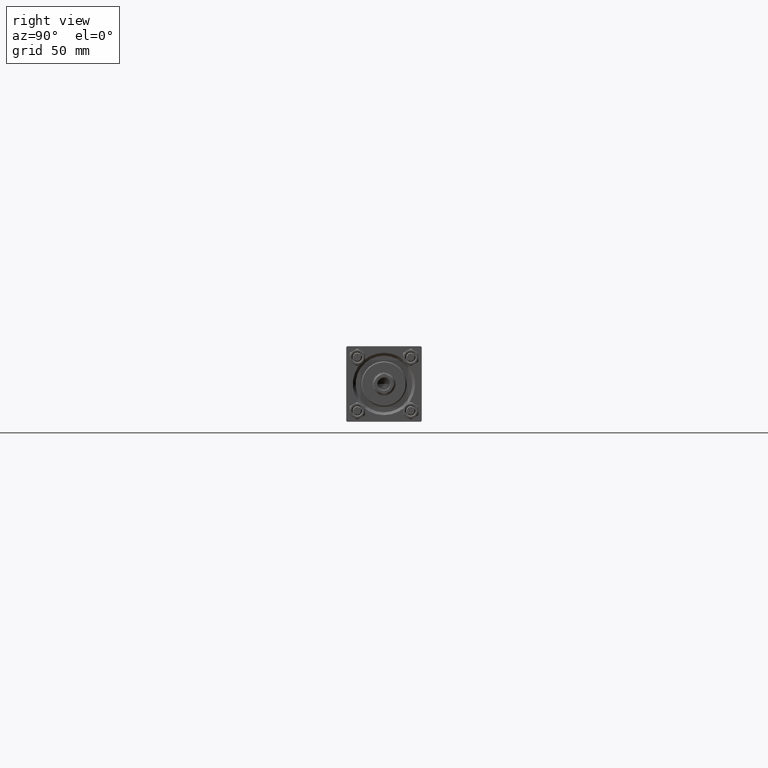
[diagram: clean part render]
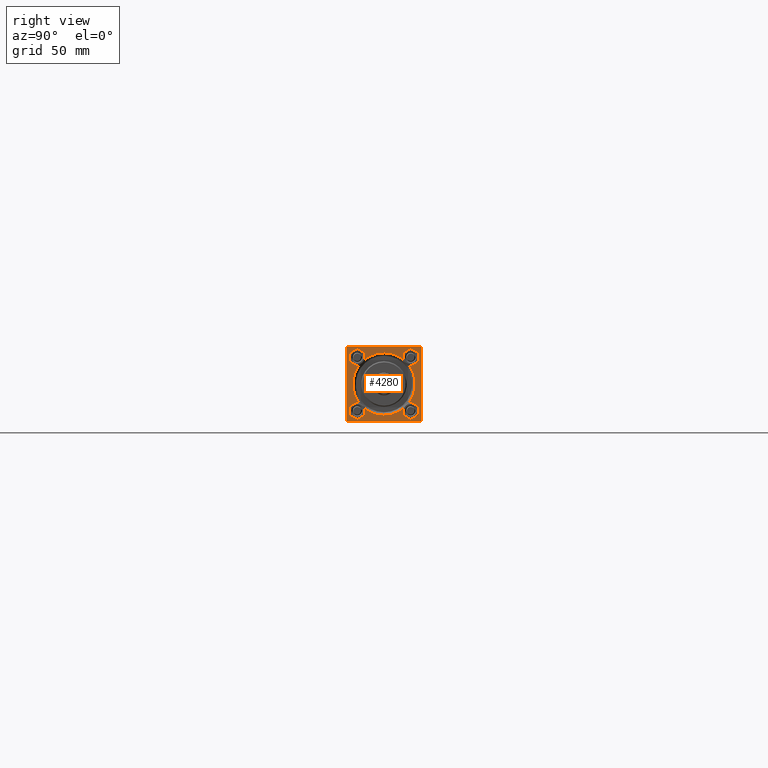
[diagram: same view with one face highlighted and labeled with its STEP entity id]
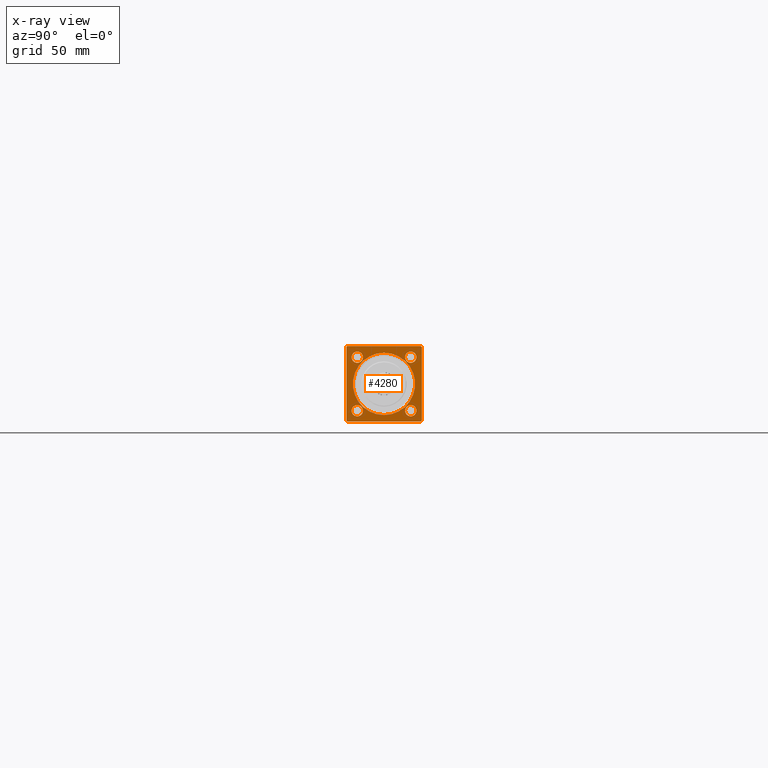
[diagram: x-ray of the same camera — body ghosted, the highlighted face saturated]
A machine part, right view. The second image highlights one B-rep face of the part: STEP entity #4280.
The next image is the same camera in x-ray: the body ghosted, the highlighted face saturated — about 0% of this face is hidden behind the body in this view.
In plain terms, the highlighted planar face has unit normal (-1, 0, 0).
Its self-contained STEP definition (entity closure, byte-faithful):
#285 = DIRECTION ( 'NONE',  ( -1.000000000000000000, -0.000000000000000000, -0.000000000000000000 ) ) ;
#430 = DIRECTION ( 'NONE',  ( 0.000000000000000000, 8.673617379884036705E-17, -1.000000000000000000 ) ) ;
#545 = VERTEX_POINT ( 'NONE', #15264 ) ;
#1279 = CIRCLE ( 'NONE', #23796, 16.50000000000001421 ) ;
#1395 = VERTEX_POINT ( 'NONE', #24186 ) ;
#1407 = ORIENTED_EDGE ( 'NONE', *, *, #14185, .T. ) ;
#1546 = CARTESIAN_POINT ( 'NONE',  ( 349.0000000000000568, 14.15000000000000036, 14.15000000000000036 ) ) ;
#1561 = AXIS2_PLACEMENT_3D ( 'NONE', #36440, #28636, #2215 ) ;
#2215 = DIRECTION ( 'NONE',  ( -0.000000000000000000, 0.000000000000000000, 1.000000000000000000 ) ) ;
#2224 = VERTEX_POINT ( 'NONE', #26988 ) ;
#2597 = DIRECTION ( 'NONE',  ( 0.000000000000000000, 0.000000000000000000, 1.000000000000000000 ) ) ;
#3080 = VERTEX_POINT ( 'NONE', #3415 ) ;
#3397 = CIRCLE ( 'NONE', #41960, 2.999999999999948930 ) ;
#3415 = CARTESIAN_POINT ( 'NONE',  ( 349.0000000000000568, 14.15000000000000036, 17.14999999999994884 ) ) ;
#3543 = VERTEX_POINT ( 'NONE', #31005 ) ;
#3788 = CARTESIAN_POINT ( 'NONE',  ( 349.0000000000000568, 19.99999999999999645, -19.50000000000000000 ) ) ;
#4043 = VERTEX_POINT ( 'NONE', #11554 ) ;
#4157 = LINE ( 'NONE', #11948, #42179 ) ;
#4280 = ADVANCED_FACE ( 'NONE', ( #5490, #6237, #5735, #25098, #21079, #20830 ), #36194, .F. ) ;
#4591 = EDGE_CURVE ( 'NONE', #31652, #39536, #48400, .T. ) ;
#4906 = AXIS2_PLACEMENT_3D ( 'NONE', #40559, #28242, #25199 ) ;
#4974 = EDGE_LOOP ( 'NONE', ( #44259, #21746, #35215, #9643, #23665, #16614, #34670, #5513 ) ) ;
#5184 = EDGE_CURVE ( 'NONE', #7539, #45128, #17318, .T. ) ;
#5490 = FACE_BOUND ( 'NONE', #10378, .T. ) ;
#5513 = ORIENTED_EDGE ( 'NONE', *, *, #46246, .T. ) ;
#5677 = CARTESIAN_POINT ( 'NONE',  ( 349.0000000000000568, 2.020667218593134678E-15, 16.50000000000001421 ) ) ;
#5735 = FACE_BOUND ( 'NONE', #13906, .T. ) ;
#6132 = VERTEX_POINT ( 'NONE', #29644 ) ;
#6237 = FACE_BOUND ( 'NONE', #22122, .T. ) ;
#6854 = AXIS2_PLACEMENT_3D ( 'NONE', #28531, #25240, #2597 ) ;
#7150 = DIRECTION ( 'NONE',  ( 0.000000000000000000, -1.000000000000000000, 0.000000000000000000 ) ) ;
#7426 = DIRECTION ( 'NONE',  ( 0.000000000000000000, 0.000000000000000000, 1.000000000000000000 ) ) ;
#7539 = VERTEX_POINT ( 'NONE', #43655 ) ;
#7676 = DIRECTION ( 'NONE',  ( -1.000000000000000000, -0.000000000000000000, -0.000000000000000000 ) ) ;
#7814 = DIRECTION ( 'NONE',  ( 0.000000000000000000, 0.000000000000000000, 1.000000000000000000 ) ) ;
#8487 = CARTESIAN_POINT ( 'NONE',  ( 349.0000000000000568, -19.50000000000006040, 19.99999999999999645 ) ) ;
#8518 = CIRCLE ( 'NONE', #18126, 2.999999999999948930 ) ;
#8546 = EDGE_CURVE ( 'NONE', #2224, #19412, #12944, .T. ) ;
#8712 = DIRECTION ( 'NONE',  ( 0.000000000000000000, 0.000000000000000000, 1.000000000000000000 ) ) ;
#8835 = AXIS2_PLACEMENT_3D ( 'NONE', #36564, #24978, #40329 ) ;
#9323 = ORIENTED_EDGE ( 'NONE', *, *, #21122, .T. ) ;
#9643 = ORIENTED_EDGE ( 'NONE', *, *, #17207, .T. ) ;
#10378 = EDGE_LOOP ( 'NONE', ( #12256, #41924 ) ) ;
#10435 = VERTEX_POINT ( 'NONE', #8487 ) ;
#10440 = CIRCLE ( 'NONE', #8835, 2.999999999999945377 ) ;
#10633 = CARTESIAN_POINT ( 'NONE',  ( 349.0000000000000568, -19.49999999999999645, -20.00000000000000000 ) ) ;
#10855 = DIRECTION ( 'NONE',  ( -1.000000000000000000, -0.000000000000000000, -0.000000000000000000 ) ) ;
#10921 = LINE ( 'NONE', #38092, #12489 ) ;
#11028 = CARTESIAN_POINT ( 'NONE',  ( 349.0000000000000568, 14.15000000000000036, -17.14999999999994884 ) ) ;
#11554 = CARTESIAN_POINT ( 'NONE',  ( 349.0000000000000568, 14.15000000000000036, -11.15000000000005187 ) ) ;
#11718 = CARTESIAN_POINT ( 'NONE',  ( 349.0000000000000568, 19.99999999999999645, 20.00000000000000000 ) ) ;
#11948 = CARTESIAN_POINT ( 'NONE',  ( 349.0000000000000568, -20.00000000000000355, 19.50000000000005329 ) ) ;
#11974 = EDGE_CURVE ( 'NONE', #19412, #2224, #10440, .T. ) ;
#12256 = ORIENTED_EDGE ( 'NONE', *, *, #32076, .T. ) ;
#12489 = VECTOR ( 'NONE', #7150, 1000.000000000000000 ) ;
#12804 = AXIS2_PLACEMENT_3D ( 'NONE', #31369, #42941, #8712 ) ;
#12944 = CIRCLE ( 'NONE', #4906, 2.999999999999945377 ) ;
#12982 = CIRCLE ( 'NONE', #30682, 2.999999999999948930 ) ;
#13906 = EDGE_LOOP ( 'NONE', ( #27906, #9323 ) ) ;
#14185 = EDGE_CURVE ( 'NONE', #4043, #42825, #32112, .T. ) ;
#14398 = DIRECTION ( 'NONE',  ( 0.000000000000000000, 0.7071067811865474617, -0.7071067811865474617 ) ) ;
#15018 = VECTOR ( 'NONE', #43165, 1000.000000000000000 ) ;
#15022 = LINE ( 'NONE', #31138, #24229 ) ;
#15264 = CARTESIAN_POINT ( 'NONE',  ( 349.0000000000000568, -20.00000000000000355, 19.50000000000005329 ) ) ;
#16614 = ORIENTED_EDGE ( 'NONE', *, *, #5184, .T. ) ;
#17207 = EDGE_CURVE ( 'NONE', #6132, #48492, #27589, .T. ) ;
#17318 = LINE ( 'NONE', #48032, #39347 ) ;
#17599 = VERTEX_POINT ( 'NONE', #5677 ) ;
#17749 = CARTESIAN_POINT ( 'NONE',  ( 349.0000000000000568, 19.49999999999999645, 20.00000000000000000 ) ) ;
#18126 = AXIS2_PLACEMENT_3D ( 'NONE', #1546, #36278, #28462 ) ;
#18154 = CARTESIAN_POINT ( 'NONE',  ( 349.0000000000000568, 0.000000000000000000, 0.000000000000000000 ) ) ;
#18443 = LINE ( 'NONE', #26998, #41190 ) ;
#18631 = CARTESIAN_POINT ( 'NONE',  ( 349.0000000000000568, -14.15000000000000036, -14.15000000000000036 ) ) ;
#18951 = DIRECTION ( 'NONE',  ( 0.000000000000000000, 0.000000000000000000, -1.000000000000000000 ) ) ;
#19412 = VERTEX_POINT ( 'NONE', #30899 ) ;
#19955 = EDGE_CURVE ( 'NONE', #3543, #1395, #12982, .T. ) ;
#20766 = EDGE_CURVE ( 'NONE', #545, #31652, #15022, .T. ) ;
#20830 = FACE_OUTER_BOUND ( 'NONE', #4974, .T. ) ;
#21079 = FACE_BOUND ( 'NONE', #39442, .T. ) ;
#21122 = EDGE_CURVE ( 'NONE', #3080, #44140, #3397, .T. ) ;
#21746 = ORIENTED_EDGE ( 'NONE', *, *, #4591, .T. ) ;
#22121 = CIRCLE ( 'NONE', #30176, 2.999999999999948930 ) ;
#22122 = EDGE_LOOP ( 'NONE', ( #32453, #1407 ) ) ;
#22158 = EDGE_CURVE ( 'NONE', #7539, #48492, #18443, .T. ) ;
#22900 = AXIS2_PLACEMENT_3D ( 'NONE', #34754, #285, #27453 ) ;
#23280 = DIRECTION ( 'NONE',  ( -0.000000000000000000, -0.7071067811865474617, -0.7071067811865474617 ) ) ;
#23665 = ORIENTED_EDGE ( 'NONE', *, *, #22158, .F. ) ;
#23796 = AXIS2_PLACEMENT_3D ( 'NONE', #18154, #10855, #42063 ) ;
#24186 = CARTESIAN_POINT ( 'NONE',  ( 349.0000000000000568, -14.15000000000000036, -17.14999999999994884 ) ) ;
#24229 = VECTOR ( 'NONE', #430, 1000.000000000000000 ) ;
#24580 = DIRECTION ( 'NONE',  ( 0.000000000000000000, 0.000000000000000000, 1.000000000000000000 ) ) ;
#24978 = DIRECTION ( 'NONE',  ( -1.000000000000000000, -0.000000000000000000, -0.000000000000000000 ) ) ;
#25098 = FACE_BOUND ( 'NONE', #37476, .T. ) ;
#25199 = DIRECTION ( 'NONE',  ( 0.000000000000000000, 0.000000000000000000, 1.000000000000000000 ) ) ;
#25240 = DIRECTION ( 'NONE',  ( -1.000000000000000000, -0.000000000000000000, -0.000000000000000000 ) ) ;
#25288 = CIRCLE ( 'NONE', #22900, 2.999999999999948930 ) ;
#26490 = VECTOR ( 'NONE', #14398, 1000.000000000000114 ) ;
#26988 = CARTESIAN_POINT ( 'NONE',  ( 349.0000000000000568, -14.15000000000000036, 17.14999999999994884 ) ) ;
#26998 = CARTESIAN_POINT ( 'NONE',  ( 349.0000000000000568, 19.99999999999999645, 20.00000000000000000 ) ) ;
#27453 = DIRECTION ( 'NONE',  ( 0.000000000000000000, 0.000000000000000000, 1.000000000000000000 ) ) ;
#27578 = ORIENTED_EDGE ( 'NONE', *, *, #34474, .T. ) ;
#27589 = LINE ( 'NONE', #47723, #35414 ) ;
#27906 = ORIENTED_EDGE ( 'NONE', *, *, #48449, .T. ) ;
#28242 = DIRECTION ( 'NONE',  ( -1.000000000000000000, -0.000000000000000000, -0.000000000000000000 ) ) ;
#28331 = DIRECTION ( 'NONE',  ( -0.000000000000000000, 0.7071067811865474617, 0.7071067811865474617 ) ) ;
#28349 = CARTESIAN_POINT ( 'NONE',  ( 349.0000000000000568, 14.15000000000000036, -14.15000000000000036 ) ) ;
#28462 = DIRECTION ( 'NONE',  ( 0.000000000000000000, 0.000000000000000000, 1.000000000000000000 ) ) ;
#28531 = CARTESIAN_POINT ( 'NONE',  ( 349.0000000000000568, 0.000000000000000000, 0.000000000000000000 ) ) ;
#28636 = DIRECTION ( 'NONE',  ( -1.000000000000000000, 0.000000000000000000, -0.000000000000000000 ) ) ;
#29644 = CARTESIAN_POINT ( 'NONE',  ( 349.0000000000000568, 19.49999999999999645, -20.00000000000000000 ) ) ;
#30176 = AXIS2_PLACEMENT_3D ( 'NONE', #28349, #43472, #24580 ) ;
#30682 = AXIS2_PLACEMENT_3D ( 'NONE', #18631, #45583, #7814 ) ;
#30899 = CARTESIAN_POINT ( 'NONE',  ( 349.0000000000000568, -14.15000000000000036, 11.15000000000005365 ) ) ;
#31005 = CARTESIAN_POINT ( 'NONE',  ( 349.0000000000000568, -14.15000000000000036, -11.15000000000005187 ) ) ;
#31083 = CARTESIAN_POINT ( 'NONE',  ( 349.0000000000000568, 14.15000000000000036, 14.15000000000000036 ) ) ;
#31138 = CARTESIAN_POINT ( 'NONE',  ( 349.0000000000000568, -20.00000000000000355, 19.99999999999999645 ) ) ;
#31369 = CARTESIAN_POINT ( 'NONE',  ( 349.0000000000000568, 14.15000000000000036, -14.15000000000000036 ) ) ;
#31652 = VERTEX_POINT ( 'NONE', #48500 ) ;
#31834 = CARTESIAN_POINT ( 'NONE',  ( 349.0000000000000568, -19.49999999999999645, -20.00000000000000000 ) ) ;
#32076 = EDGE_CURVE ( 'NONE', #1395, #3543, #25288, .T. ) ;
#32112 = CIRCLE ( 'NONE', #12804, 2.999999999999948930 ) ;
#32453 = ORIENTED_EDGE ( 'NONE', *, *, #46843, .T. ) ;
#33884 = CARTESIAN_POINT ( 'NONE',  ( 349.0000000000000568, 14.15000000000000036, 11.15000000000005365 ) ) ;
#34474 = EDGE_CURVE ( 'NONE', #17599, #48673, #1279, .T. ) ;
#34670 = ORIENTED_EDGE ( 'NONE', *, *, #37640, .T. ) ;
#34754 = CARTESIAN_POINT ( 'NONE',  ( 349.0000000000000568, -14.15000000000000036, -14.15000000000000036 ) ) ;
#35215 = ORIENTED_EDGE ( 'NONE', *, *, #44413, .F. ) ;
#35414 = VECTOR ( 'NONE', #28331, 1000.000000000000114 ) ;
#35600 = LINE ( 'NONE', #11718, #15018 ) ;
#36194 = PLANE ( 'NONE',  #1561 ) ;
#36278 = DIRECTION ( 'NONE',  ( -1.000000000000000000, -0.000000000000000000, -0.000000000000000000 ) ) ;
#36440 = CARTESIAN_POINT ( 'NONE',  ( 349.0000000000000568, 0.000000000000000000, 0.000000000000000000 ) ) ;
#36564 = CARTESIAN_POINT ( 'NONE',  ( 349.0000000000000568, -14.15000000000000036, 14.15000000000000036 ) ) ;
#37476 = EDGE_LOOP ( 'NONE', ( #39852, #41338 ) ) ;
#37640 = EDGE_CURVE ( 'NONE', #45128, #10435, #35600, .T. ) ;
#38092 = CARTESIAN_POINT ( 'NONE',  ( 349.0000000000000568, 19.99999999999999645, -20.00000000000000000 ) ) ;
#39347 = VECTOR ( 'NONE', #39970, 1000.000000000000114 ) ;
#39442 = EDGE_LOOP ( 'NONE', ( #47652, #27578 ) ) ;
#39536 = VERTEX_POINT ( 'NONE', #31834 ) ;
#39852 = ORIENTED_EDGE ( 'NONE', *, *, #11974, .T. ) ;
#39970 = DIRECTION ( 'NONE',  ( 0.000000000000000000, -0.7071067811865474617, 0.7071067811865474617 ) ) ;
#40329 = DIRECTION ( 'NONE',  ( 0.000000000000000000, 0.000000000000000000, 1.000000000000000000 ) ) ;
#40559 = CARTESIAN_POINT ( 'NONE',  ( 349.0000000000000568, -14.15000000000000036, 14.15000000000000036 ) ) ;
#41190 = VECTOR ( 'NONE', #18951, 1000.000000000000000 ) ;
#41338 = ORIENTED_EDGE ( 'NONE', *, *, #8546, .T. ) ;
#41924 = ORIENTED_EDGE ( 'NONE', *, *, #19955, .T. ) ;
#41960 = AXIS2_PLACEMENT_3D ( 'NONE', #31083, #7676, #7426 ) ;
#42063 = DIRECTION ( 'NONE',  ( 0.000000000000000000, 0.000000000000000000, 1.000000000000000000 ) ) ;
#42179 = VECTOR ( 'NONE', #23280, 1000.000000000000114 ) ;
#42825 = VERTEX_POINT ( 'NONE', #11028 ) ;
#42941 = DIRECTION ( 'NONE',  ( -1.000000000000000000, -0.000000000000000000, -0.000000000000000000 ) ) ;
#43165 = DIRECTION ( 'NONE',  ( 0.000000000000000000, -1.000000000000000000, -8.673617379884035472E-17 ) ) ;
#43472 = DIRECTION ( 'NONE',  ( -1.000000000000000000, -0.000000000000000000, -0.000000000000000000 ) ) ;
#43655 = CARTESIAN_POINT ( 'NONE',  ( 349.0000000000000568, 19.99999999999999645, 19.50000000000000000 ) ) ;
#43795 = CIRCLE ( 'NONE', #6854, 16.50000000000001421 ) ;
#44140 = VERTEX_POINT ( 'NONE', #33884 ) ;
#44259 = ORIENTED_EDGE ( 'NONE', *, *, #20766, .T. ) ;
#44413 = EDGE_CURVE ( 'NONE', #6132, #39536, #10921, .T. ) ;
#45128 = VERTEX_POINT ( 'NONE', #17749 ) ;
#45520 = CARTESIAN_POINT ( 'NONE',  ( 349.0000000000000568, 0.000000000000000000, -16.50000000000001421 ) ) ;
#45583 = DIRECTION ( 'NONE',  ( -1.000000000000000000, -0.000000000000000000, -0.000000000000000000 ) ) ;
#46246 = EDGE_CURVE ( 'NONE', #10435, #545, #4157, .T. ) ;
#46426 = EDGE_CURVE ( 'NONE', #48673, #17599, #43795, .T. ) ;
#46843 = EDGE_CURVE ( 'NONE', #42825, #4043, #22121, .T. ) ;
#47652 = ORIENTED_EDGE ( 'NONE', *, *, #46426, .T. ) ;
#47723 = CARTESIAN_POINT ( 'NONE',  ( 349.0000000000000568, 19.99999999999999645, -19.50000000000000000 ) ) ;
#48032 = CARTESIAN_POINT ( 'NONE',  ( 349.0000000000000568, 19.49999999999999645, 20.00000000000000000 ) ) ;
#48400 = LINE ( 'NONE', #10633, #26490 ) ;
#48449 = EDGE_CURVE ( 'NONE', #44140, #3080, #8518, .T. ) ;
#48492 = VERTEX_POINT ( 'NONE', #3788 ) ;
#48500 = CARTESIAN_POINT ( 'NONE',  ( 349.0000000000000568, -20.00000000000000000, -19.49999999999999645 ) ) ;
#48673 = VERTEX_POINT ( 'NONE', #45520 ) ;